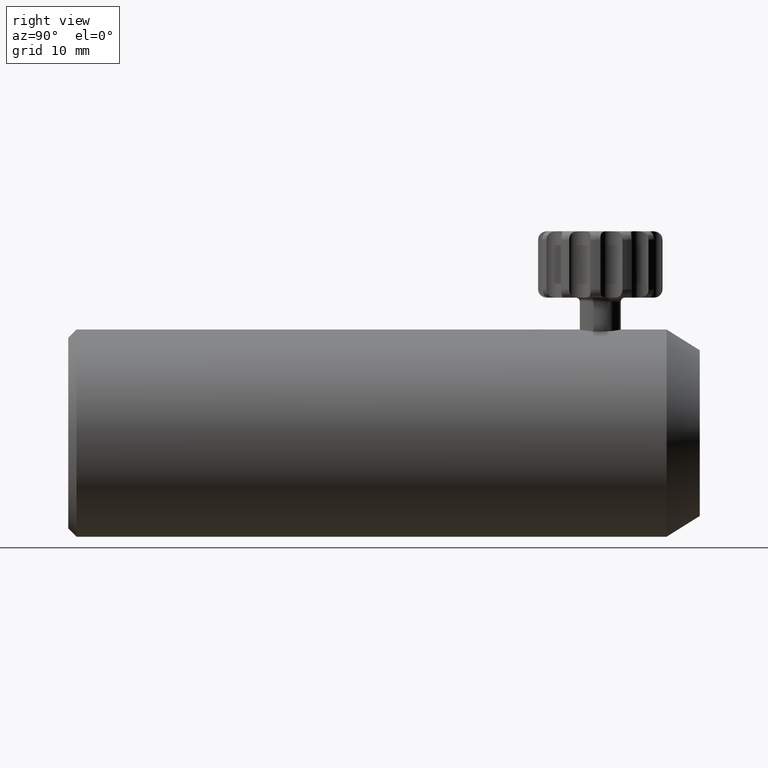
[diagram: clean part render]
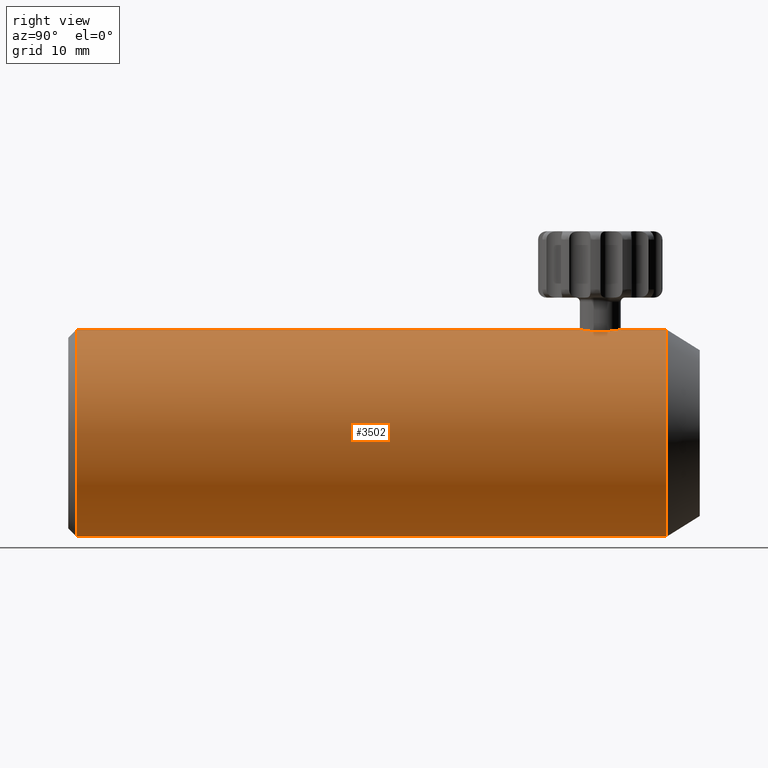
[diagram: same view with one face highlighted and labeled with its STEP entity id]
A machine part, right view. The second image highlights one B-rep face of the part: STEP entity #3502.
In plain terms, the highlighted cylindrical surface (partial cylindrical patch) has radius 12.5 mm, axis along (0, -1, -0).
Its self-contained STEP definition (entity closure, byte-faithful):
#9 = CARTESIAN_POINT ( 'NONE',  ( 1.109402923349522800, 56.71805446078695200, 12.45159248443946600 ) ) ;
#26 = CARTESIAN_POINT ( 'NONE',  ( 1.390536139047335900E-014, 56.97173567099245200, 12.50000000000000000 ) ) ;
#50 = CARTESIAN_POINT ( 'NONE',  ( 2.483497412815240900, 54.14178585813881000, 12.25084912254767400 ) ) ;
#63 = CARTESIAN_POINT ( 'NONE',  ( 1.997484997919362100, 56.00980624500253000, 12.34155338646356600 ) ) ;
#70 = VERTEX_POINT ( 'NONE', #3174 ) ;
#76 = CARTESIAN_POINT ( 'NONE',  ( 0.3259877077534441000, 51.98762057147756400, 12.49679308755494700 ) ) ;
#87 = CARTESIAN_POINT ( 'NONE',  ( 0.9988729955967233800, 45.70275573964728000, 12.46056251293763100 ) ) ;
#104 = DIRECTION ( 'NONE',  ( -9.992007221626420700E-016, 0.0000000000000000000, -1.000000000000000000 ) ) ;
#109 = CARTESIAN_POINT ( 'NONE',  ( 1.390536139047335900E-014, 56.97173567099245200, 12.50000000000000000 ) ) ;
#132 = CARTESIAN_POINT ( 'NONE',  ( 0.8069338409016214600, 52.09995410924580000, 12.47483855935390700 ) ) ;
#153 = CARTESIAN_POINT ( 'NONE',  ( 1.249999999999973400, 46.63690916099648100, 12.43734296383275500 ) ) ;
#167 = CARTESIAN_POINT ( 'NONE',  ( 0.6298802307698245800, 47.56378973652467600, 12.48503836658517100 ) ) ;
#234 = CARTESIAN_POINT ( 'NONE',  ( 1.402682666781482000E-014, 62.47173567099246600, 12.49999999999999100 ) ) ;
#295 = CARTESIAN_POINT ( 'NONE',  ( 2.500107398369907600, 54.63569236951475700, 12.24742679132029500 ) ) ;
#307 = CARTESIAN_POINT ( 'NONE',  ( 2.483916706317761000, 54.79918885495680300, 12.25076462712722300 ) ) ;
#347 = CARTESIAN_POINT ( 'NONE',  ( 2.419537671834274000, 53.82176356925505400, 12.26364142811839900 ) ) ;
#360 = CARTESIAN_POINT ( 'NONE',  ( 2.168472731074056400, 53.21699586460290000, 12.31081647053320400 ) ) ;
#371 = CARTESIAN_POINT ( 'NONE',  ( 1.392303918214538200E-014, 45.22173567099245900, 12.50000000000000000 ) ) ;
#381 = CARTESIAN_POINT ( 'NONE',  ( 1.249999999999988500, 46.47173567099245200, 12.43734296383275200 ) ) ;
#392 = CARTESIAN_POINT ( 'NONE',  ( 1.216778702290447900, 46.80101129446313000, 12.44079495321525600 ) ) ;
#478 = CARTESIAN_POINT ( 'NONE',  ( 1.402081752596720000E-014, -19.86467094839286000, 12.49999999999998600 ) ) ;
#501 = CARTESIAN_POINT ( 'NONE',  ( 1.391928344987868800E-014, 47.72173567099243700, 12.50000000000000000 ) ) ;
#529 = EDGE_CURVE ( 'NONE', #70, #2276, #763, .T. ) ;
#586 = ORIENTED_EDGE ( 'NONE', *, *, #1748, .T. ) ;
#593 = CARTESIAN_POINT ( 'NONE',  ( 2.371164775906530400, 53.66278654587151900, 12.27320958535853300 ) ) ;
#598 = CARTESIAN_POINT ( 'NONE',  ( 1.402081752596720000E-014, -19.86467094839286000, 12.49999999999998600 ) ) ;
#694 = CARTESIAN_POINT ( 'NONE',  ( 1.249999999999988500, 46.47173567099245200, 12.43734296383275200 ) ) ;
#699 = CARTESIAN_POINT ( 'NONE',  ( -1.249000902703301100E-014, -19.86467094839286000, -12.49999999999998600 ) ) ;
#717 = CARTESIAN_POINT ( 'NONE',  ( 1.391928344987868800E-014, 47.72173567099243700, 12.50000000000000000 ) ) ;
#726 = DIRECTION ( 'NONE',  ( 1.502285461903961200E-018, -1.000000000000000000, -4.971860657915503100E-018 ) ) ;
#729 = CARTESIAN_POINT ( 'NONE',  ( 0.3272351690976892400, 47.68921188483227500, 12.49663351724471900 ) ) ;
#763 = CIRCLE ( 'NONE', #2175, 12.49999999999998800 ) ;
#766 = ORIENTED_EDGE ( 'NONE', *, *, #1863, .T. ) ;
#907 = ORIENTED_EDGE ( 'NONE', *, *, #2644, .T. ) ;
#927 = CARTESIAN_POINT ( 'NONE',  ( 0.6480471930071574100, 56.89180084237386800, 12.48421958381606700 ) ) ;
#928 = CARTESIAN_POINT ( 'NONE',  ( 1.249000902703301300E-014, -8.728264329007521000, 12.49999999999998800 ) ) ;
#948 = CARTESIAN_POINT ( 'NONE',  ( 0.3278467621247666000, 45.25455056429028400, 12.49660711011464900 ) ) ;
#968 = CARTESIAN_POINT ( 'NONE',  ( 0.6488856029626132200, 52.05180937304204700, 12.48419212176083100 ) ) ;
#992 = VERTEX_POINT ( 'NONE', #1091 ) ;
#1091 = CARTESIAN_POINT ( 'NONE',  ( 1.392303918214538200E-014, 45.22173567099245900, 12.50000000000000000 ) ) ;
#1166 = B_SPLINE_CURVE_WITH_KNOTS ( 'NONE', 3,
 ( #694, #1228, #2858, #3158, #87, #2055, #2040, #948, #1493, #371 ),
 .UNSPECIFIED., .F., .F.,
 ( 4, 2, 2, 2, 4 ),
 ( 4.336808689942017700E-019, 0.0004889271271764371400, 0.0009778542543528738400, 0.001466781381529310600, 0.001955708508705747700 ),
 .UNSPECIFIED. ) ;
#1182 = AXIS2_PLACEMENT_3D ( 'NONE', #1282, #726, #104 ) ;
#1219 = CARTESIAN_POINT ( 'NONE',  ( 2.183754043932166800, 55.73160163212588000, 12.30842712960681600 ) ) ;
#1228 = CARTESIAN_POINT ( 'NONE',  ( 1.249999999999973600, 46.30640534831252400, 12.43734296383275300 ) ) ;
#1236 = ORIENTED_EDGE ( 'NONE', *, *, #3451, .T. ) ;
#1246 = CARTESIAN_POINT ( 'NONE',  ( 1.257992004506631500, 52.28692077779618300, 12.44019346066365200 ) ) ;
#1253 = VERTEX_POINT ( 'NONE', #1361 ) ;
#1257 = AXIS2_PLACEMENT_3D ( 'NONE', #2251, #3013, #3000 ) ;
#1281 = VERTEX_POINT ( 'NONE', #234 ) ;
#1282 = CARTESIAN_POINT ( 'NONE',  ( 0.0000000000000000000, -19.86467094839286000, 0.0000000000000000000 ) ) ;
#1357 = CARTESIAN_POINT ( 'NONE',  ( 0.9988258077560424600, 47.24074968849701200, 12.46056539080442200 ) ) ;
#1361 = CARTESIAN_POINT ( 'NONE',  ( -1.248399988518539900E-014, 62.47173567099246600, -12.49999999999999100 ) ) ;
#1379 = ORIENTED_EDGE ( 'NONE', *, *, #3602, .T. ) ;
#1468 = CARTESIAN_POINT ( 'NONE',  ( 2.419581563706423700, 55.12188399882607100, 12.26363327932501500 ) ) ;
#1493 = CARTESIAN_POINT ( 'NONE',  ( 0.1632135460536394100, 45.22173567099248000, 12.50000000000000200 ) ) ;
#1499 = CARTESIAN_POINT ( 'NONE',  ( 0.1635026151798855700, 51.97173567099247300, 12.50000000000000400 ) ) ;
#1530 = CARTESIAN_POINT ( 'NONE',  ( 1.391289874940237300E-014, 51.97173567099245900, 12.50000000000000000 ) ) ;
#1539 = CARTESIAN_POINT ( 'NONE',  ( 0.1650922665555185900, 47.72173567099242300, 12.50000000000000200 ) ) ;
#1542 = CYLINDRICAL_SURFACE ( 'NONE', #1182, 12.49999999999998600 ) ;
#1580 = LINE ( 'NONE', #699, #2401 ) ;
#1665 = CARTESIAN_POINT ( 'NONE',  ( 0.0000000000000000000, -8.728264329007521000, 0.0000000000000000000 ) ) ;
#1748 = EDGE_CURVE ( 'NONE', #1281, #2611, #3337, .T. ) ;
#1750 = CARTESIAN_POINT ( 'NONE',  ( 2.499891539515627600, 54.30451996290118200, 12.24747085331466700 ) ) ;
#1775 = CARTESIAN_POINT ( 'NONE',  ( 1.536346594811161900, 52.47288600276289800, 12.40740408594200700 ) ) ;
#1848 = DIRECTION ( 'NONE',  ( 1.502285461903961200E-018, -1.000000000000000000, -4.971860657915503100E-018 ) ) ;
#1863 = EDGE_CURVE ( 'NONE', #3654, #3318, #1944, .T. ) ;
#1933 = DIRECTION ( 'NONE',  ( -9.992007221626420700E-016, 0.0000000000000000000, -1.000000000000000000 ) ) ;
#1944 = LINE ( 'NONE', #2241, #2997 ) ;
#1971 = VECTOR ( 'NONE', #3085, 1000.000000000000000 ) ;
#1980 = EDGE_LOOP ( 'NONE', ( #3270, #586, #1236, #766, #907, #1379, #3281, #2275, #2499 ) ) ;
#1986 = CARTESIAN_POINT ( 'NONE',  ( 0.3276435073932178500, 56.95554933754656400, 12.49673371378954200 ) ) ;
#2040 = CARTESIAN_POINT ( 'NONE',  ( 0.6287757669236195800, 45.37918630444515600, 12.48508365205989900 ) ) ;
#2055 = CARTESIAN_POINT ( 'NONE',  ( 0.7682336835139368400, 45.47228862204058000, 12.47690596292500800 ) ) ;
#2076 = CARTESIAN_POINT ( 'NONE',  ( 0.7683811875380751600, 47.47104838681049400, 12.47689597629915600 ) ) ;
#2175 = AXIS2_PLACEMENT_3D ( 'NONE', #1665, #3612, #1933 ) ;
#2241 = CARTESIAN_POINT ( 'NONE',  ( 1.402081752596720000E-014, -19.86467094839286000, 12.49999999999998600 ) ) ;
#2251 = CARTESIAN_POINT ( 'NONE',  ( 0.0000000000000000000, 62.47173567099246600, 0.0000000000000000000 ) ) ;
#2275 = ORIENTED_EDGE ( 'NONE', *, *, #529, .F. ) ;
#2276 = VERTEX_POINT ( 'NONE', #928 ) ;
#2283 = CARTESIAN_POINT ( 'NONE',  ( 2.371157239043167700, 55.28051520760075700, 12.27320876462390400 ) ) ;
#2401 = VECTOR ( 'NONE', #1848, 1000.000000000000000 ) ;
#2499 = ORIENTED_EDGE ( 'NONE', *, *, #2665, .F. ) ;
#2546 = CARTESIAN_POINT ( 'NONE',  ( 2.245367310041848500, 53.36036411992178300, 12.29684600064715000 ) ) ;
#2611 = VERTEX_POINT ( 'NONE', #109 ) ;
#2644 = EDGE_CURVE ( 'NONE', #3318, #3153, #2903, .T. ) ;
#2665 = EDGE_CURVE ( 'NONE', #1253, #70, #1580, .T. ) ;
#2700 = VECTOR ( 'NONE', #3267, 1000.000000000000000 ) ;
#2842 = CARTESIAN_POINT ( 'NONE',  ( 0.8074397385136532500, 56.84339416672690200, 12.47481347810679100 ) ) ;
#2858 = CARTESIAN_POINT ( 'NONE',  ( 1.217402745360329100, 46.14417744980200100, 12.44073584797020400 ) ) ;
#2878 = CARTESIAN_POINT ( 'NONE',  ( 1.652782898320524800, 56.35447583971099300, 12.39079417422386500 ) ) ;
#2903 = B_SPLINE_CURVE_WITH_KNOTS ( 'NONE', 3,
 ( #717, #1539, #729, #167, #2076, #1357, #3208, #392, #153, #2943 ),
 .UNSPECIFIED., .F., .F.,
 ( 4, 2, 2, 2, 4 ),
 ( 0.005866252154378851500, 0.006354715484301207100, 0.006843178814223563700, 0.007331642144145919400, 0.007820105474068275000 ),
 .UNSPECIFIED. ) ;
#2911 = CARTESIAN_POINT ( 'NONE',  ( 1.391289874940237300E-014, 51.97173567099245900, 12.50000000000000000 ) ) ;
#2943 = CARTESIAN_POINT ( 'NONE',  ( 1.249999999999988500, 46.47173567099245200, 12.43734296383275200 ) ) ;
#2997 = VECTOR ( 'NONE', #3035, 1000.000000000000000 ) ;
#3000 = DIRECTION ( 'NONE',  ( -9.992007221626420700E-016, 0.0000000000000000000, -1.000000000000000000 ) ) ;
#3013 = DIRECTION ( 'NONE',  ( 1.502285461903961200E-018, -1.000000000000000000, -4.971860657915503100E-018 ) ) ;
#3016 = FACE_OUTER_BOUND ( 'NONE', #1980, .T. ) ;
#3035 = DIRECTION ( 'NONE',  ( 1.502285461903961200E-018, -1.000000000000000000, -4.971860657915503100E-018 ) ) ;
#3048 = EDGE_CURVE ( 'NONE', #992, #2276, #3324, .T. ) ;
#3085 = DIRECTION ( 'NONE',  ( 1.502285461903961200E-018, -1.000000000000000000, -4.971860657915503100E-018 ) ) ;
#3130 = CARTESIAN_POINT ( 'NONE',  ( 1.252905657288153600, 56.64129869522314900, 12.43780406570529900 ) ) ;
#3144 = CARTESIAN_POINT ( 'NONE',  ( 0.1650553855411223100, 56.97173567099243000, 12.49999999999999800 ) ) ;
#3153 = VERTEX_POINT ( 'NONE', #381 ) ;
#3158 = CARTESIAN_POINT ( 'NONE',  ( 1.091801080163454600, 45.84139113501691300, 12.45238725244021400 ) ) ;
#3174 = CARTESIAN_POINT ( 'NONE',  ( -1.095920052809882300E-014, -8.728264329007521000, -12.49999999999998800 ) ) ;
#3190 = CARTESIAN_POINT ( 'NONE',  ( 1.986902004323747500, 52.94567328944820900, 12.34142198378200400 ) ) ;
#3208 = CARTESIAN_POINT ( 'NONE',  ( 1.091943347343458300, 47.10152339138082300, 12.45237283430295600 ) ) ;
#3267 = DIRECTION ( 'NONE',  ( 1.502285461903961200E-018, -1.000000000000000000, -4.971860657915503100E-018 ) ) ;
#3270 = ORIENTED_EDGE ( 'NONE', *, *, #3288, .T. ) ;
#3281 = ORIENTED_EDGE ( 'NONE', *, *, #3048, .T. ) ;
#3288 = EDGE_CURVE ( 'NONE', #1253, #1281, #3638, .T. ) ;
#3292 = B_SPLINE_CURVE_WITH_KNOTS ( 'NONE', 3,
 ( #26, #3144, #1986, #927, #2842, #9, #3130, #3425, #2878, #63, #1219, #2283, #1468, #307, #295, #1750, #50, #347, #593, #2546, #360, #3190, #3435, #1775, #1246, #132, #968, #76, #1499, #2911 ),
 .UNSPECIFIED., .F., .F.,
 ( 4, 2, 2, 2, 2, 2, 2, 2, 2, 2, 2, 2, 2, 2, 4 ),
 ( 0.01175406517630188700, 0.01224372957917607700, 0.01273339398205026700, 0.01322305838492445800, 0.01371272278779864800, 0.01469205159354702900, 0.01518171599642120800, 0.01567138039929538700, 0.01616104480216957000, 0.01665070920504374900, 0.01714037360791793200, 0.01763003801079211100, 0.01860936681654047300, 0.01909903121941464900, 0.01958869562228882400 ),
 .UNSPECIFIED. ) ;
#3318 = VERTEX_POINT ( 'NONE', #501 ) ;
#3324 = LINE ( 'NONE', #598, #1971 ) ;
#3337 = LINE ( 'NONE', #478, #2700 ) ;
#3425 = CARTESIAN_POINT ( 'NONE',  ( 1.525017025165816200, 56.45947292101522700, 12.40737948302921500 ) ) ;
#3435 = CARTESIAN_POINT ( 'NONE',  ( 1.881535195632549000, 52.81756956038318400, 12.35812827900753200 ) ) ;
#3451 = EDGE_CURVE ( 'NONE', #2611, #3654, #3292, .T. ) ;
#3502 = ADVANCED_FACE ( 'NONE', ( #3016 ), #1542, .T. ) ;
#3602 = EDGE_CURVE ( 'NONE', #3153, #992, #1166, .T. ) ;
#3612 = DIRECTION ( 'NONE',  ( 1.502285461903961200E-018, -1.000000000000000000, -4.971860657915503100E-018 ) ) ;
#3638 = CIRCLE ( 'NONE', #1257, 12.49999999999998600 ) ;
#3654 = VERTEX_POINT ( 'NONE', #1530 ) ;